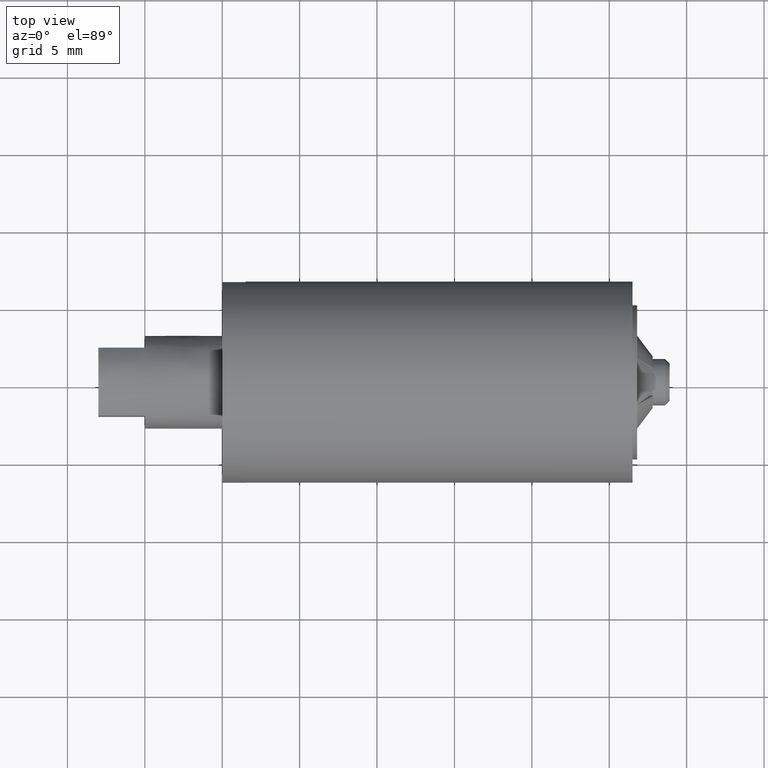
[diagram: clean part render]
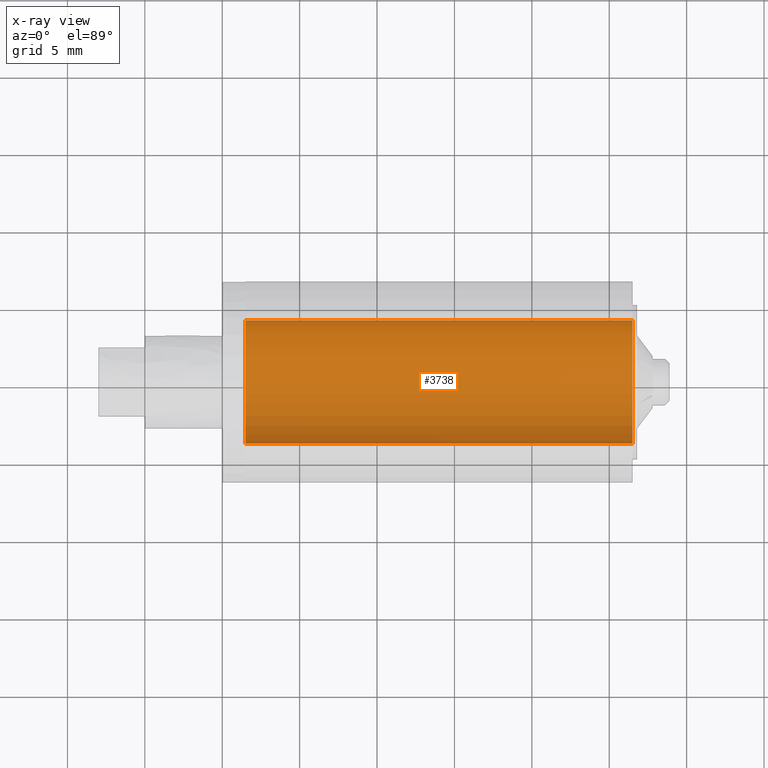
[diagram: x-ray — body ghosted, one internal face saturated and labeled with its STEP entity id]
A machine part, top view, then the same camera in x-ray: the body is ghosted and one INTERNAL B-rep face — a face not visible from any outside direction — is saturated and labeled: STEP entity #3738.
In plain terms, the highlighted face is a freeform B-spline surface patch.
Its self-contained STEP definition (entity closure, byte-faithful):
#3636=CARTESIAN_POINT('',(5.874999999999999,-3.972038105454666,0.472136938627034));
#3637=CARTESIAN_POINT('',(5.874999999999998,-3.985550461794422,0.358458914551911));
#3638=CARTESIAN_POINT('',(5.874999999999998,-3.992539193687467,0.244194158139428));
#3639=CARTESIAN_POINT('',(5.874999999999998,-4.236733351826894,-3.748345035548039));
#3640=CARTESIAN_POINT('',(5.874999999999998,-0.244194158139428,-3.992539193687467));
#3641=CARTESIAN_POINT('',(5.874999999999998,3.748345035548039,-4.236733351826894));
#3642=CARTESIAN_POINT('',(5.874999999999998,3.992539193687467,-0.244194158139428));
#3643=CARTESIAN_POINT('',(32.140625000000000,-3.972038105454666,0.472136938627034));
#3644=CARTESIAN_POINT('',(32.140625000000007,-3.985550461794422,0.358458914551911));
#3645=CARTESIAN_POINT('',(32.140625000000000,-3.992539193687467,0.244194158139428));
#3646=CARTESIAN_POINT('',(32.140625000000000,-4.236733351826894,-3.748345035548039));
#3647=CARTESIAN_POINT('',(32.140625000000000,-0.244194158139428,-3.992539193687467));
#3648=CARTESIAN_POINT('',(32.140625000000000,3.748345035548039,-4.236733351826894));
#3649=CARTESIAN_POINT('',(32.140625000000000,3.992539193687467,-0.244194158139428));
#3657=(BOUNDED_SURFACE()B_SPLINE_SURFACE(2,1,((#3636,#3643),(#3637,#3644),(#3638,#3645),(#3639,#3646),(#3640,#3647),(#3641,#3648),(#3642,#3649)),.UNSPECIFIED.,.F.,.F.,.U.)B_SPLINE_SURFACE_WITH_KNOTS((3,2,2,3),(2,2),(0.0,0.265096679918781,6.892513677888299,13.519930675857820),(0.0,26.265625000000000),.UNSPECIFIED.)GEOMETRIC_REPRESENTATION_ITEM()RATIONAL_B_SPLINE_SURFACE(((0.977505800795127,0.977505800795127),(0.988284271247462,0.988284271247462),(1.0,1.0),(0.707106781186548,0.707106781186548),(1.0,1.0),(0.707106781186548,0.707106781186548),(1.0,1.0)))REPRESENTATION_ITEM('')SURFACE());
#3658=CARTESIAN_POINT('',(31.500000000000011,-3.972038854409007,0.472130637668133));
#3659=VERTEX_POINT('',#3658);
#3660=CARTESIAN_POINT('',(31.500000000000000,0.0,-4.0));
#3661=VERTEX_POINT('',#3660);
#3662=CARTESIAN_POINT('',(31.500000000000018,-3.972038854409007,0.472130637668133));
#3663=CARTESIAN_POINT('',(31.499999999999996,-4.0,0.236893294822473));
#3664=CARTESIAN_POINT('',(31.500000000000000,-4.0,0.0));
#3665=CARTESIAN_POINT('',(31.500000000000000,-4.000000000000000,-4.000000000000000));
#3666=CARTESIAN_POINT('',(31.500000000000000,0.0,-4.0));
#3674=(BOUNDED_CURVE()B_SPLINE_CURVE(2,(#3662,#3663,#3664,#3665,#3666),.UNSPECIFIED.,.F.,.U.)B_SPLINE_CURVE_WITH_KNOTS((3,2,3),(0.229562741610410,0.250000000000000,0.500000000000000),.UNSPECIFIED.)CURVE()GEOMETRIC_REPRESENTATION_ITEM()RATIONAL_B_SPLINE_CURVE((0.956027279665272,0.976056262426203,1.0,0.707106781186548,1.0))REPRESENTATION_ITEM(''));
#3675=EDGE_CURVE('',#3659,#3661,#3674,.T.);
#3676=ORIENTED_EDGE('',*,*,#3675,.T.);
#3677=CARTESIAN_POINT('',(31.500000000000000,3.992539193685617,-0.244194158169679));
#3678=VERTEX_POINT('',#3677);
#3679=CARTESIAN_POINT('',(31.500000000000000,0.0,-4.0));
#3680=CARTESIAN_POINT('',(31.500000000000007,3.762824267565653,-4.0));
#3681=CARTESIAN_POINT('',(31.500000000000004,3.992539193685616,-0.244194158169679));
#3689=(BOUNDED_CURVE()B_SPLINE_CURVE(2,(#3679,#3680,#3681),.UNSPECIFIED.,.F.,.U.)B_SPLINE_CURVE_WITH_KNOTS((3,3),(0.500000000000000,0.739332962239354),.UNSPECIFIED.)CURVE()GEOMETRIC_REPRESENTATION_ITEM()RATIONAL_B_SPLINE_CURVE((1.0,0.719603993286229,0.976072041667598))REPRESENTATION_ITEM(''));
#3690=EDGE_CURVE('',#3661,#3678,#3689,.T.);
#3691=ORIENTED_EDGE('',*,*,#3690,.T.);
#3692=CARTESIAN_POINT('',(6.500000000000000,3.992539193685617,-0.244194158169679));
#3693=VERTEX_POINT('',#3692);
#3694=CARTESIAN_POINT('',(6.500000000000000,3.992539193685617,-0.244194158169679));
#3695=CARTESIAN_POINT('',(31.500000000000000,3.992539193685617,-0.244194158169679));
#3696=QUASI_UNIFORM_CURVE('',1,(#3694,#3695),.UNSPECIFIED.,.F.,.U.);
#3697=EDGE_CURVE('',#3693,#3678,#3696,.T.);
#3698=ORIENTED_EDGE('',*,*,#3697,.F.);
#3699=CARTESIAN_POINT('',(6.500000000000000,0.0,-4.0));
#3700=VERTEX_POINT('',#3699);
#3701=CARTESIAN_POINT('',(6.500000000000000,0.0,-4.0));
#3702=CARTESIAN_POINT('',(6.500000000000000,3.762824267565653,-4.0));
#3703=CARTESIAN_POINT('',(6.500000000000001,3.992539193685616,-0.244194158169679));
#3711=(BOUNDED_CURVE()B_SPLINE_CURVE(2,(#3701,#3702,#3703),.UNSPECIFIED.,.F.,.U.)B_SPLINE_CURVE_WITH_KNOTS((3,3),(0.500000000000000,0.739332962239354),.UNSPECIFIED.)CURVE()GEOMETRIC_REPRESENTATION_ITEM()RATIONAL_B_SPLINE_CURVE((1.0,0.719603993286229,0.976072041667598))REPRESENTATION_ITEM(''));
#3712=EDGE_CURVE('',#3700,#3693,#3711,.T.);
#3713=ORIENTED_EDGE('',*,*,#3712,.F.);
#3714=CARTESIAN_POINT('',(6.500000000000000,-3.972038845156864,0.472130715507522));
#3715=VERTEX_POINT('',#3714);
#3716=CARTESIAN_POINT('',(6.500000000000000,-3.972038845156863,0.472130715507522));
#3717=CARTESIAN_POINT('',(6.500000000000001,-4.0,0.236893334153603));
#3718=CARTESIAN_POINT('',(6.500000000000000,-4.0,0.0));
#3719=CARTESIAN_POINT('',(6.500000000000001,-4.000000000000000,-4.000000000000000));
#3720=CARTESIAN_POINT('',(6.500000000000000,0.0,-4.0));
#3728=(BOUNDED_CURVE()B_SPLINE_CURVE(2,(#3716,#3717,#3718,#3719,#3720),.UNSPECIFIED.,.F.,.U.)B_SPLINE_CURVE_WITH_KNOTS((3,2,3),(0.229562738298480,0.250000000000000,0.500000000000000),.UNSPECIFIED.)CURVE()GEOMETRIC_REPRESENTATION_ITEM()RATIONAL_B_SPLINE_CURVE((0.956027273173737,0.976056258546036,1.0,0.707106781186548,1.0))REPRESENTATION_ITEM(''));
#3729=EDGE_CURVE('',#3715,#3700,#3728,.T.);
#3730=ORIENTED_EDGE('',*,*,#3729,.F.);
#3731=CARTESIAN_POINT('',(6.500000000000000,-3.972038845156864,0.472130715507522));
#3732=CARTESIAN_POINT('',(31.500000000000011,-3.972038854409007,0.472130637668133));
#3733=QUASI_UNIFORM_CURVE('',1,(#3731,#3732),.UNSPECIFIED.,.F.,.U.);
#3734=EDGE_CURVE('',#3715,#3659,#3733,.T.);
#3735=ORIENTED_EDGE('',*,*,#3734,.T.);
#3736=EDGE_LOOP('',(#3676,#3691,#3698,#3713,#3730,#3735));
#3737=FACE_OUTER_BOUND('',#3736,.T.);
#3738=ADVANCED_FACE('',(#3737),#3657,.F.);